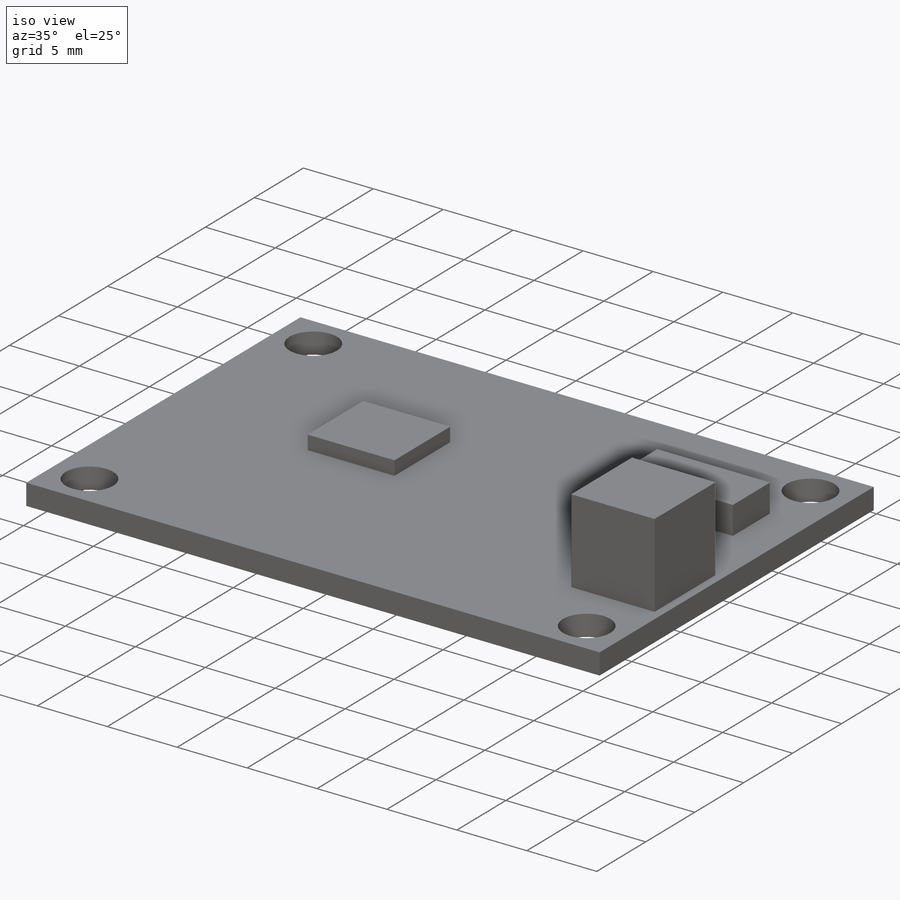
[diagram: iso view]
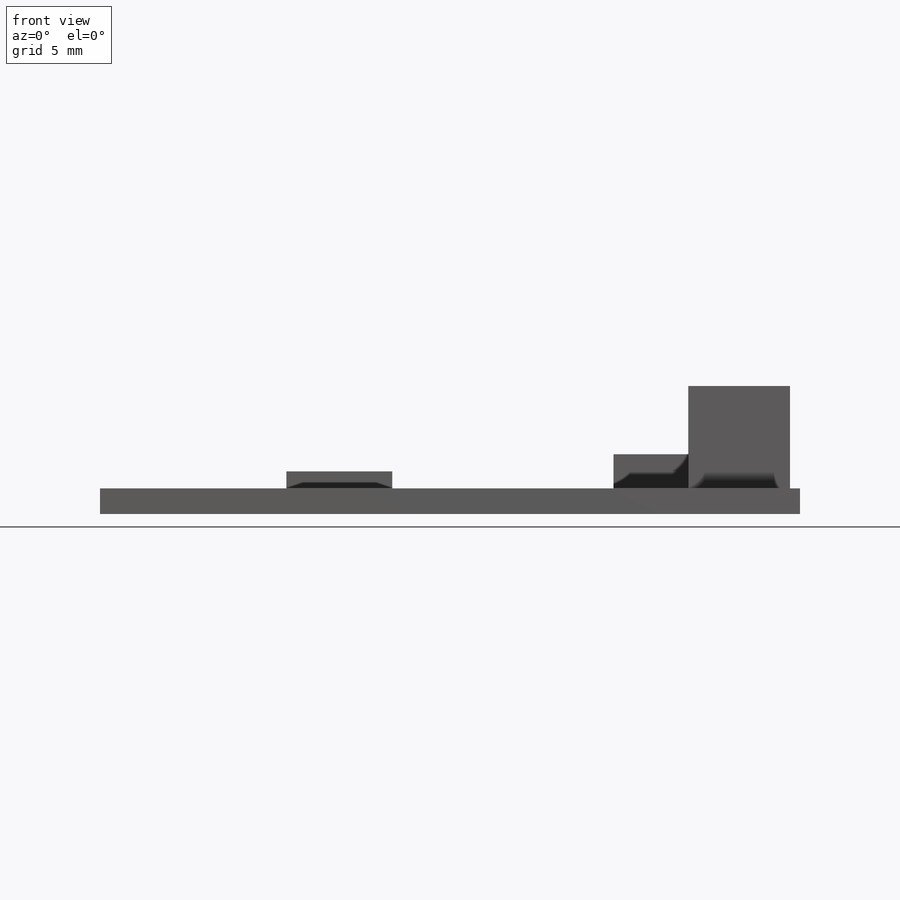
[diagram: front view]
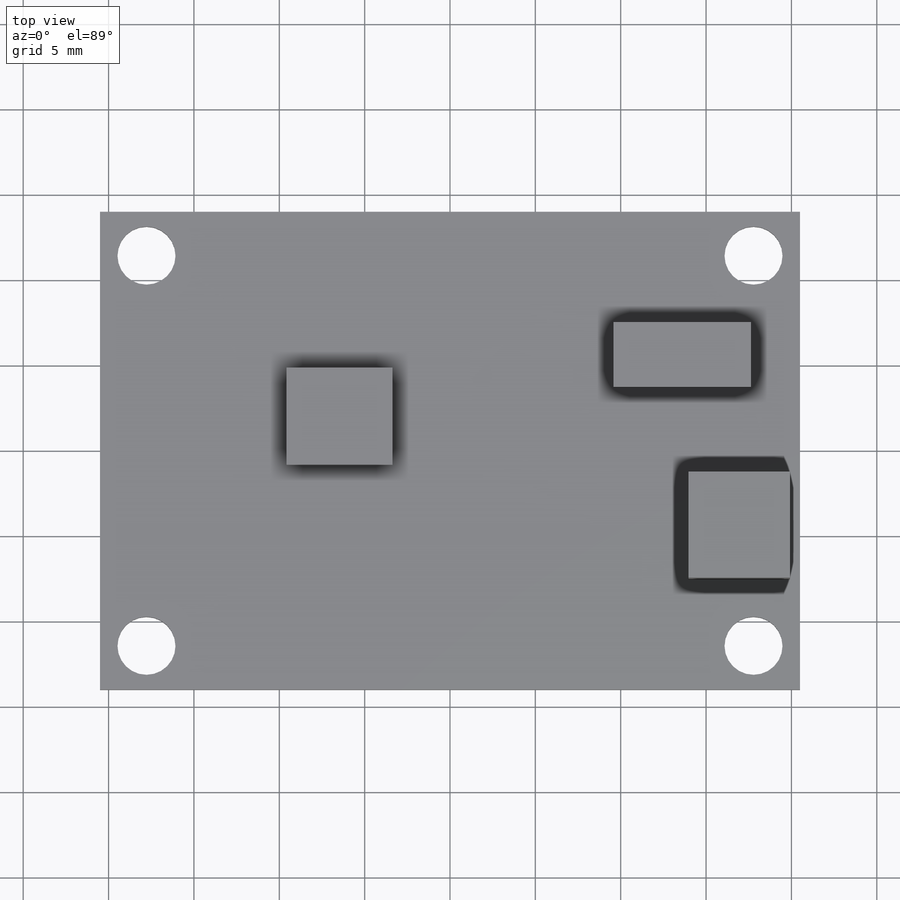
[diagram: top view]
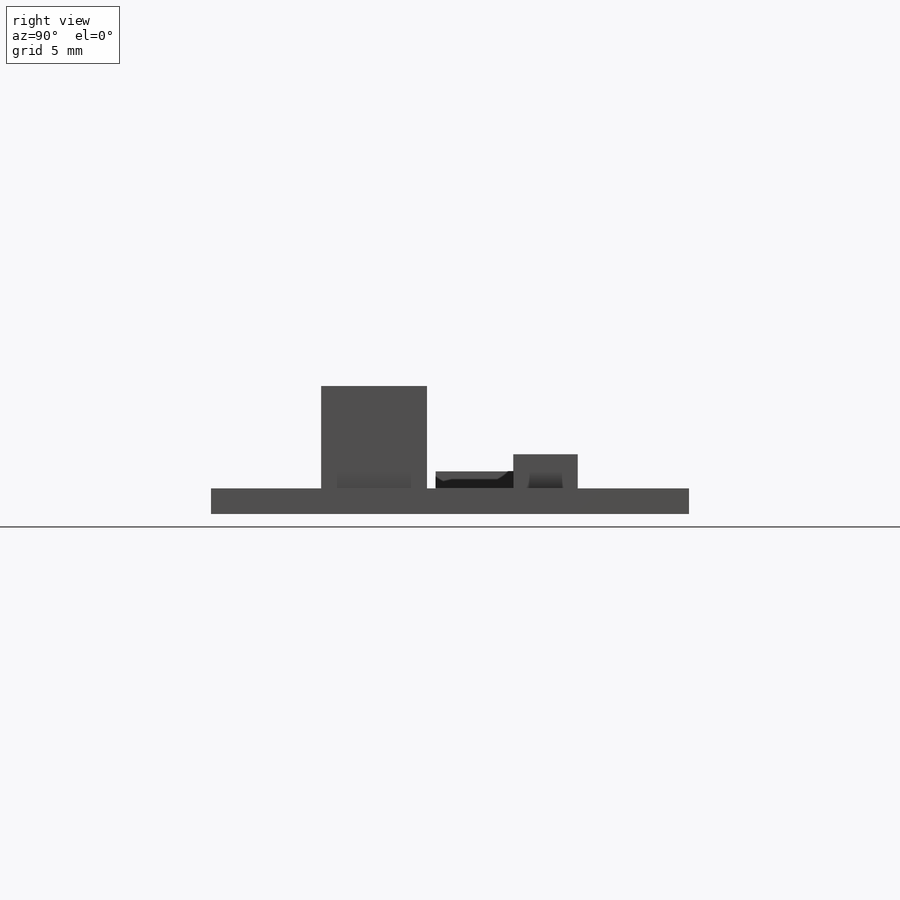
[diagram: right view]
SOLIDWORKS PART (.sldprt)
format: sldprt  version: not decoded by parser v0  size: 245,760 bytes
history: native  units: mm
features: sketch x6, extrude x4, plane x3, material x1, hole x1 (+10 scaffold rows collapsed)
feature tree (25):
  scaffold x10  (default folders/planes/origin — collapsed)
  material  "Elaborazione scheda, Semplice"
  plane  "Piano frontale"
  plane  "Piano superiore"
  plane  "Piano destro"
  sketch  "Schizzo1"  dims[c1.D1=~59.017307mm c1.D2=~106.877113mm c2.D1=41.0mm c2.D2=28.0mm]
  extrude  "Estrusione-Estrusione1"  Depth=1.5mm
  hole  "Foro per Vite M3-1"  Diameter=3.4mm Depth=1.5mm
  sketch  "Schizzo3"  dims[D1=22.86mm D2=35.56mm]
  sketch  "Schizzo2"  dims[hole-wizard template sketch: 60 standard entries collapsed; hole parameters kept: c18.Thru Hole Depth=1.5mm]
  sketch  "Schizzo5"  dims[D1=~5.678489mm D2=~6.206252mm]
  extrude  "Estrusione-Estrusione2"  Depth=1mm
  sketch  "Schizzo6"  dims[D1=~6.198087mm D2=~5.870286mm]
  extrude  "Estrusione-Estrusione3"  Depth=6mm
  sketch  "Schizzo7"  dims[D1=~3.777135mm D2=~8.055062mm]
  extrude  "Estrusione-Estrusione4"  Depth=2mm
decode coverage: 11 of 11 modeling features carry decoded parameters
note: ~ marks probable driven/reference dimensions
note: suppression state not decoded; provenance and decode notes live in map.json
